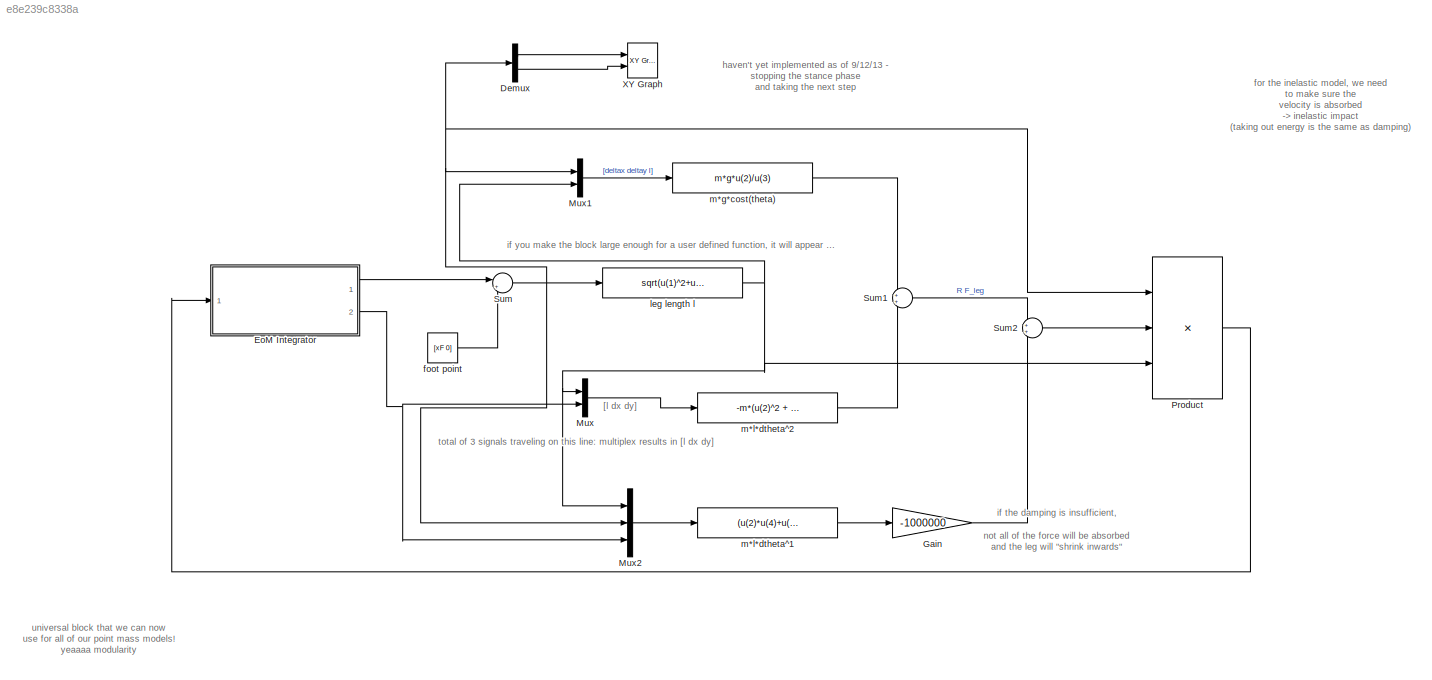
MODEL slx_e8e239c8338a
KIND model
CONFIG InitFcn = walkingModel_params
BLOCK [Demux] Demux
  DisplayOption = bar
  Outputs = 2
  Ports = [1, 2]
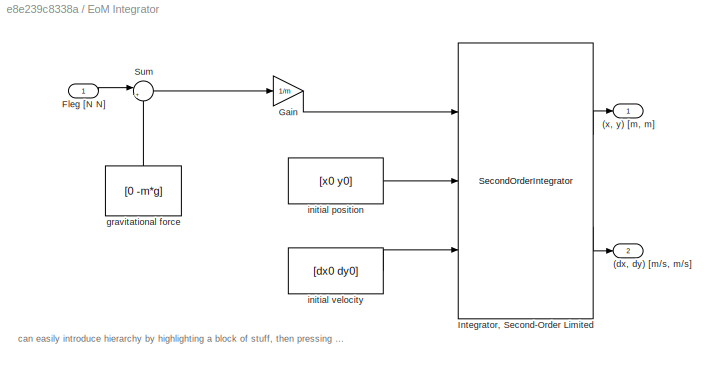
BLOCK [SubSystem] EoM Integrator 
  FunctionWithSeparateData = off
  MaskHideContents = off
  MinAlgLoopOccurrences = off
  Opaque = off
  Ports = [1, 2]
  PropExecContextOutsideSubsystem = off
  RTWSystemCode = Auto
  RequestExecContextInheritance = off
BLOCK [Outport] EoM Integrator /(dx, dy) [m//s, m//s]
  IconDisplay = Port number
  Port = 2
BLOCK [Outport] EoM Integrator /(x, y) [m, m]
  IconDisplay = Port number
BLOCK [Inport] EoM Integrator /Fleg [N N] 
  IconDisplay = Port number
BLOCK [Gain] EoM Integrator /Gain
  Gain = 1/m
  OutDataTypeStr = Inherit: Inherit via internal rule
  ParamDataTypeStr = Inherit: Inherit via internal rule
  SaturateOnIntegerOverflow = off
BLOCK [SecondOrderIntegrator] EoM Integrator /Integrator, Second-Order Limited
  ICSourceDXDT = external
  ICSourceX = external
  LowerLimitX = 0
  Ports = [3, 2]
  UpperLimitX = 1
BLOCK [Sum] EoM Integrator /Sum
  IconShape = round
  InputSameDT = off
  Inputs = |++
  OutDataTypeStr = Inherit: Inherit via internal rule
  Ports = [2, 1]
  SaturateOnIntegerOverflow = off
BLOCK [Constant] EoM Integrator /gravitational force 
  Value = [0 -m*g]
BLOCK [Constant] EoM Integrator /initial position 
  Value = [x0 y0]
BLOCK [Constant] EoM Integrator /initial velocity
  Value = [dx0 dy0]
BLOCK [Gain] Gain
  Gain = -1000000
  OutDataTypeStr = Inherit: Inherit via internal rule
  ParamDataTypeStr = Inherit: Inherit via internal rule
  SaturateOnIntegerOverflow = off
BLOCK [Mux] Mux
  DisplayOption = bar
  Inputs = 2
  Ports = [2, 1]
BLOCK [Mux] Mux1
  DisplayOption = bar
  Inputs = 2
  Ports = [2, 1]
BLOCK [Mux] Mux2
  DisplayOption = bar
  Inputs = 3
  Ports = [3, 1]
BLOCK [Product] Product
  InputSameDT = off
  Inputs = **/
  OutDataTypeStr = Inherit: Inherit via internal rule
  Ports = [3, 1]
  RndMeth = Floor
  SaturateOnIntegerOverflow = off
BLOCK [Sum] Sum
  IconShape = round
  InputSameDT = off
  Inputs = |+-
  OutDataTypeStr = Inherit: Inherit via internal rule
  Ports = [2, 1]
  SaturateOnIntegerOverflow = off
BLOCK [Sum] Sum1
  IconShape = round
  InputSameDT = off
  OutDataTypeStr = Inherit: Inherit via internal rule
  Ports = [2, 1]
  SaturateOnIntegerOverflow = off
BLOCK [Sum] Sum2
  IconShape = round
  InputSameDT = off
  OutDataTypeStr = Inherit: Inherit via internal rule
  Ports = [2, 1]
  SaturateOnIntegerOverflow = off
BLOCK [Reference] XY Graph  REF=simulink/Sinks/XY Graph
  Ports = [2]
  SourceBlock = simulink/Sinks/XY Graph
  SourceType = XY scope.
  st = 0.01
  xmax = 1
  xmin = -1
  ymax = 1.1
  ymin = 0
BLOCK [Constant] foot point
  Value = [xF 0]
BLOCK [Fcn] leg length l
  Expr = sqrt(u(1)^2+u(2)^2)
BLOCK [Fcn] m*g*cost(theta)
  Expr = m*g*u(2)/u(3)
BLOCK [Fcn] m*l*dtheta^1
  Expr = (u(2)*u(4)+u(3)*u(5))/u(1)
BLOCK [Fcn] m*l*dtheta^2
  Expr = -m*(u(2)^2 + u(3)^2)/u(1)
ANNOTATION (root): [l dx dy]
ANNOTATION (root): for the inelastic model, we need to make sure the velocity is absorbed -> inelastic impact (taking out energy is the same as damping)
ANNOTATION (root): haven't yet implemented as of 9/12/13 - stopping the stance phase and taking the next step
ANNOTATION (root): if the damping is insufficient, not all of the force will be absorbed and the leg will "shrink inwards"
ANNOTATION (root): if you make the block large enough for a user defined function, it will appear in the block
ANNOTATION (root): total of 3 signals traveling on this line: multiplex results in [l dx dy]
ANNOTATION (root): universal block that we can now use for all of our point mass models! yeaaaa modularity
ANNOTATION EoM Integrator : can easily introduce hierarchy by highlighting a block of stuff, then pressing ctrl g
LINE Demux:1 -> XY Graph:1
LINE Demux:2 -> XY Graph:2
LINE EoM Integrator /Fleg [N N] :1 -> EoM Integrator /Sum:1
LINE EoM Integrator /Gain:1 -> EoM Integrator /Integrator, Second-Order Limited:1
LINE EoM Integrator /Integrator, Second-Order Limited:1 -> EoM Integrator /(x, y) [m, m]:1
LINE EoM Integrator /Integrator, Second-Order Limited:2 -> EoM Integrator /(dx, dy) [m//s, m//s]:1
LINE EoM Integrator /Sum:1 -> EoM Integrator /Gain:1
LINE EoM Integrator /gravitational force :1 -> EoM Integrator /Sum:2
LINE EoM Integrator /initial position :1 -> EoM Integrator /Integrator, Second-Order Limited:2
LINE EoM Integrator /initial velocity:1 -> EoM Integrator /Integrator, Second-Order Limited:3
LINE EoM Integrator :1 -> Sum:1
NET EoM Integrator :2 -> Mux2:3, Mux:2
LINE Gain:1 -> Sum2:2
LINE Mux1:1 -> m*g*cost(theta):1
LINE Mux2:1 -> m*l*dtheta^1:1
LINE Mux:1 -> m*l*dtheta^2:1
LINE Product:1 -> EoM Integrator :1
LINE Sum1:1 -> Sum2:1
LINE Sum2:1 -> Product:2
NET Sum:1 -> Demux:1, Mux1:1, Mux2:2, Product:1, leg length l:1
LINE foot point:1 -> Sum:2
NET leg length l:1 -> Mux1:2, Mux2:1, Mux:1, Product:3
LINE m*g*cost(theta):1 -> Sum1:1
LINE m*l*dtheta^1:1 -> Gain:1
LINE m*l*dtheta^2:1 -> Sum1:2
note: NET lines group one-source signal fan-out (src -> all destinations, sorted); 1:1 wires keep LINE
